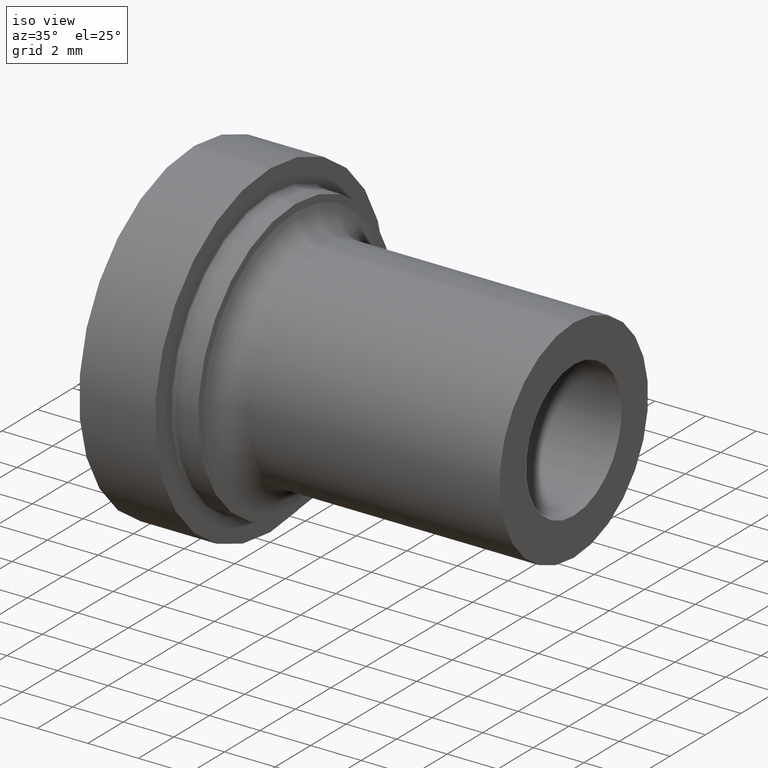
[diagram: clean part render]
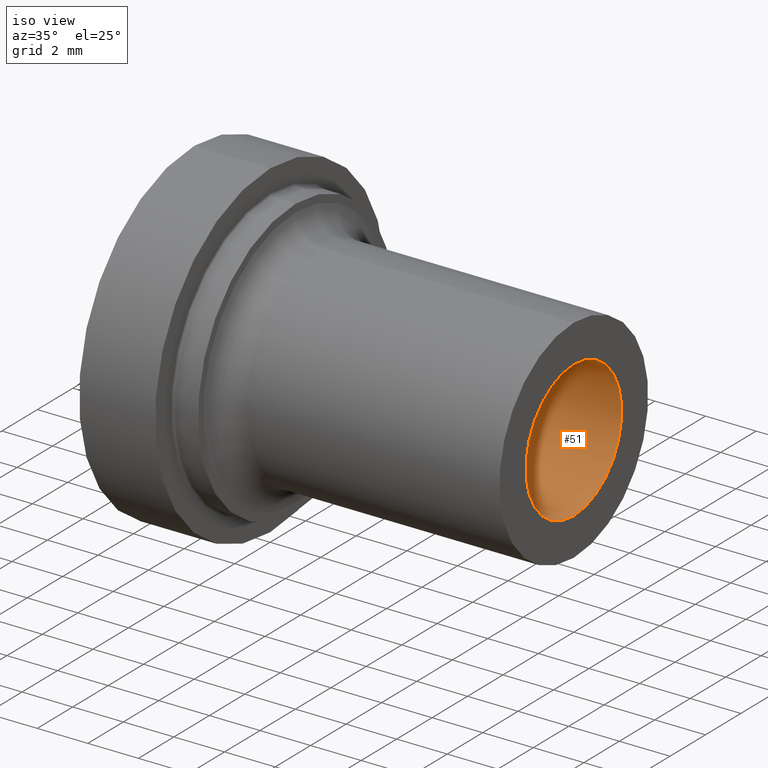
[diagram: same view with one face highlighted and labeled with its STEP entity id]
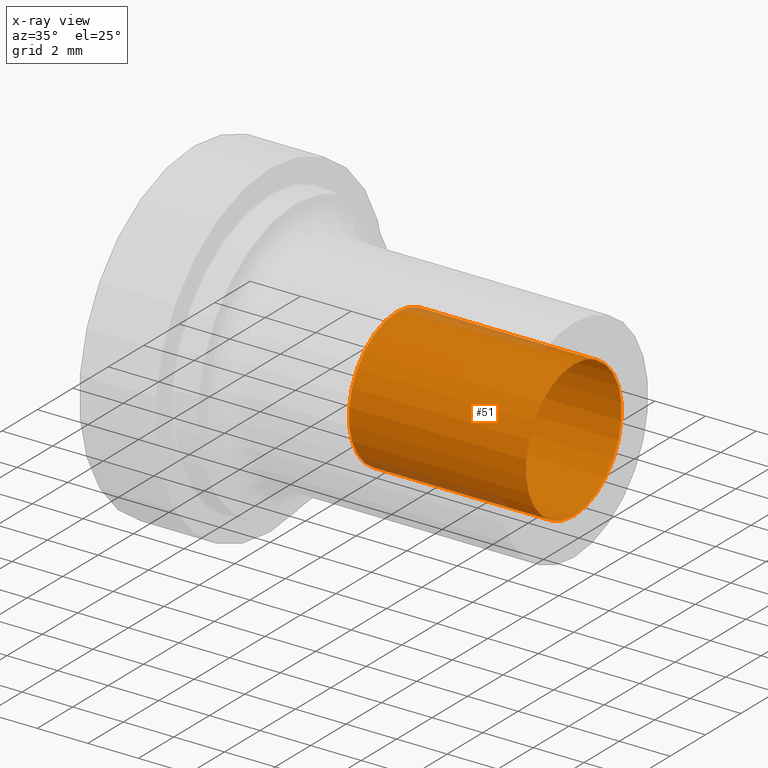
[diagram: x-ray of the same camera — body ghosted, the highlighted face saturated]
A machine part, iso view. The second image highlights one B-rep face of the part: STEP entity #51.
The next image is the same camera in x-ray: the body ghosted, the highlighted face saturated — about 6% of this face is hidden behind the body in this view.
In plain terms, the highlighted cylindrical surface (bore or boss wall) has radius 2.7 mm, axis along (1, -0, -0).
Its self-contained STEP definition (entity closure, byte-faithful):
#51 = ADVANCED_FACE( '', ( #108, #109 ), #110, .F. );
#108 = FACE_OUTER_BOUND( '', #167, .T. );
#109 = FACE_OUTER_BOUND( '', #168, .T. );
#110 = CYLINDRICAL_SURFACE( '', #169, 2.70000000000000 );
#167 = EDGE_LOOP( '', ( #234 ) );
#168 = EDGE_LOOP( '', ( #235 ) );
#169 = AXIS2_PLACEMENT_3D( '', #236, #237, #238 );
#234 = ORIENTED_EDGE( '', *, *, #270, .F. );
#235 = ORIENTED_EDGE( '', *, *, #288, .T. );
#236 = CARTESIAN_POINT( '', ( 8.72762103540935, 0.000000000000000, 3.67273485929464E-015 ) );
#237 = DIRECTION( '', ( 1.00000000000000, -0.000000000000000, -0.000000000000000 ) );
#238 = DIRECTION( '', ( 0.000000000000000, 0.000000000000000, 1.00000000000000 ) );
#270 = EDGE_CURVE( '', #296, #296, #297, .T. );
#288 = EDGE_CURVE( '', #325, #325, #326, .T. );
#296 = VERTEX_POINT( '', #335 );
#297 = CIRCLE( '', #336, 2.70000000000000 );
#325 = VERTEX_POINT( '', #364 );
#326 = CIRCLE( '', #365, 2.70000000000000 );
#335 = CARTESIAN_POINT( '', ( 0.000000000000000, 0.000000000000000, 2.70000000000000 ) );
#336 = AXIS2_PLACEMENT_3D( '', #373, #374, #375 );
#364 = CARTESIAN_POINT( '', ( -7.00000000000000, 0.000000000000000, 2.70000000000000 ) );
#365 = AXIS2_PLACEMENT_3D( '', #406, #407, #408 );
#373 = CARTESIAN_POINT( '', ( 0.000000000000000, 0.000000000000000, 3.67273485929464E-015 ) );
#374 = DIRECTION( '', ( -1.00000000000000, 0.000000000000000, 0.000000000000000 ) );
#375 = DIRECTION( '', ( 0.000000000000000, 0.000000000000000, 1.00000000000000 ) );
#406 = CARTESIAN_POINT( '', ( -7.00000000000000, 0.000000000000000, 0.000000000000000 ) );
#407 = DIRECTION( '', ( -1.00000000000000, 0.000000000000000, 0.000000000000000 ) );
#408 = DIRECTION( '', ( 0.000000000000000, 0.000000000000000, 1.00000000000000 ) );